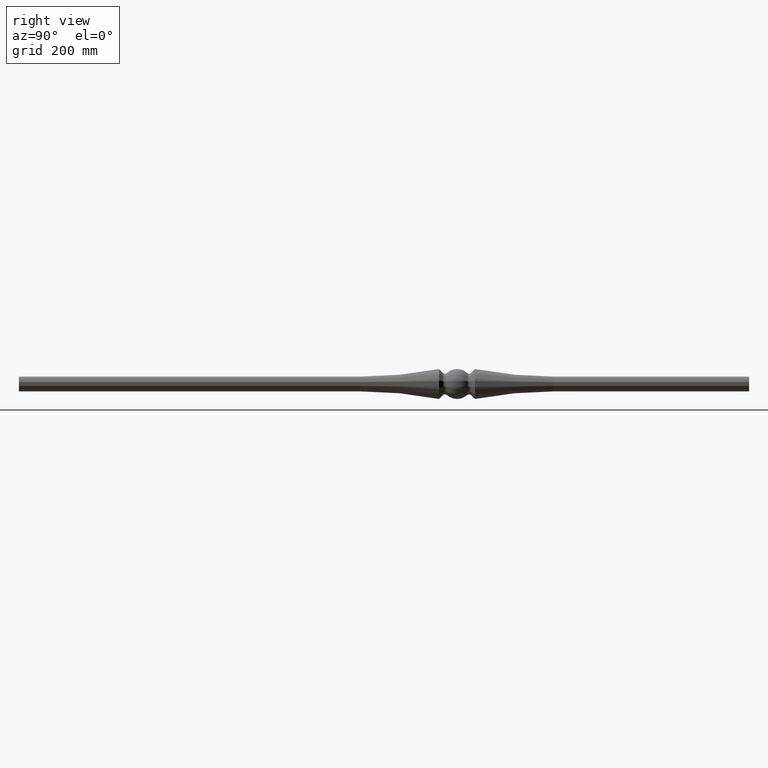
[diagram: clean part render]
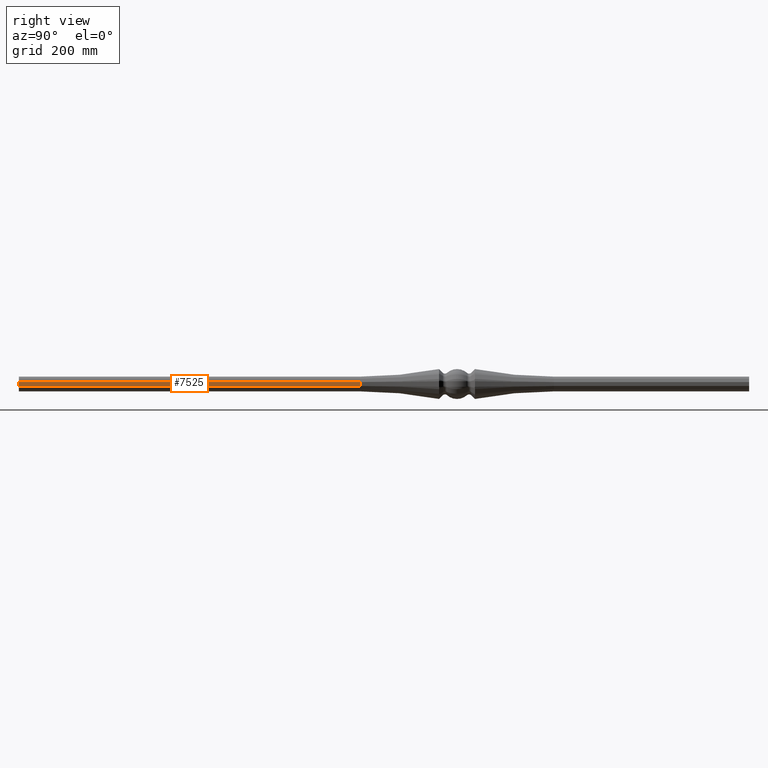
[diagram: same view with one face highlighted and labeled with its STEP entity id]
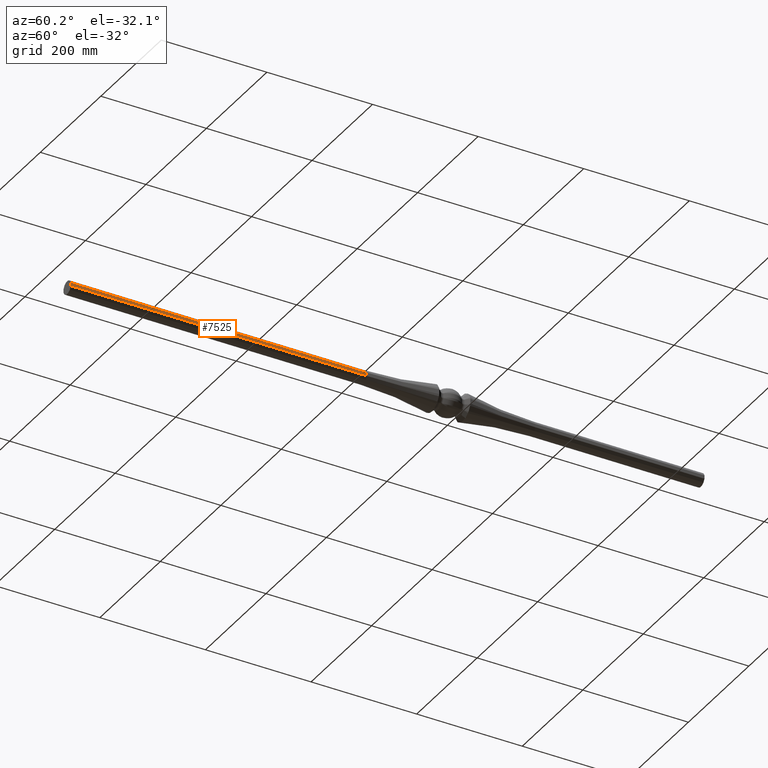
[diagram: same view with one face highlighted and labeled with its STEP entity id]
A machine part, right view. The second image highlights one B-rep face of the part: STEP entity #7525.
A second angle (auxiliary view) of the same face is appended — the face is thin or edge-on in the first view.
In plain terms, the highlighted planar face has unit normal (1, 0, 0).
Its self-contained STEP definition (entity closure, byte-faithful):
#684 = LINE ( 'NONE', #9816, #14993 ) ;
#759 = EDGE_CURVE ( 'NONE', #2006, #18825, #684, .T. ) ;
#817 = EDGE_CURVE ( 'NONE', #4476, #18825, #9700, .T. ) ;
#959 = CARTESIAN_POINT ( 'NONE',  ( 12.09999999999985043, -159.4142026448495244, 5.000000000000000000 ) ) ;
#1418 = ORIENTED_EDGE ( 'NONE', *, *, #7694, .F. ) ;
#1969 = CARTESIAN_POINT ( 'NONE',  ( 12.10000000000004050, -720.0000000000000000, -3.136877428271551249 ) ) ;
#2006 = VERTEX_POINT ( 'NONE', #5380 ) ;
#2109 = DIRECTION ( 'NONE',  ( -0.000000000000000000, -1.000000000000000000, -0.000000000000000000 ) ) ;
#2255 = ORIENTED_EDGE ( 'NONE', *, *, #10473, .T. ) ;
#2749 = EDGE_LOOP ( 'NONE', ( #4704, #5549, #2255, #1418 ) ) ;
#3074 = DIRECTION ( 'NONE',  ( 1.000000000000000000, 2.389799105174693410E-16, 0.000000000000000000 ) ) ;
#4476 = VERTEX_POINT ( 'NONE', #17421 ) ;
#4704 = ORIENTED_EDGE ( 'NONE', *, *, #759, .T. ) ;
#5380 = CARTESIAN_POINT ( 'NONE',  ( 12.10000000000004050, -720.0000000000000000, 3.136877428271551249 ) ) ;
#5549 = ORIENTED_EDGE ( 'NONE', *, *, #817, .F. ) ;
#6595 = DIRECTION ( 'NONE',  ( 0.000000000000000000, 0.000000000000000000, -1.000000000000000000 ) ) ;
#7152 = DIRECTION ( 'NONE',  ( 0.000000000000000000, 1.000000000000000000, 0.000000000000000000 ) ) ;
#7335 = CARTESIAN_POINT ( 'NONE',  ( 12.09999999999985043, -159.4142026448495244, 3.136877428271730217 ) ) ;
#7525 = ADVANCED_FACE ( 'NONE', ( #10282 ), #10780, .T. ) ;
#7694 = EDGE_CURVE ( 'NONE', #2006, #16494, #9288, .T. ) ;
#8272 = CARTESIAN_POINT ( 'NONE',  ( 12.10000000000004050, -720.0000000000000000, -3.136877428271551249 ) ) ;
#9274 = CARTESIAN_POINT ( 'NONE',  ( 12.09999999999990727, -159.4142026448495244, 5.000000000000000000 ) ) ;
#9288 = LINE ( 'NONE', #16229, #12711 ) ;
#9700 = LINE ( 'NONE', #1969, #10894 ) ;
#9806 = AXIS2_PLACEMENT_3D ( 'NONE', #9274, #3074, #10915 ) ;
#9816 = CARTESIAN_POINT ( 'NONE',  ( 12.10000000000004050, -720.0000000000000000, 5.000000000000000000 ) ) ;
#10282 = FACE_OUTER_BOUND ( 'NONE', #2749, .T. ) ;
#10473 = EDGE_CURVE ( 'NONE', #4476, #16494, #13853, .T. ) ;
#10780 = PLANE ( 'NONE',  #9806 ) ;
#10894 = VECTOR ( 'NONE', #2109, 1000.000000000000000 ) ;
#10915 = DIRECTION ( 'NONE',  ( -2.389799105174693410E-16, 1.000000000000000000, 0.000000000000000000 ) ) ;
#12711 = VECTOR ( 'NONE', #7152, 1000.000000000000000 ) ;
#13853 = LINE ( 'NONE', #959, #19446 ) ;
#14790 = DIRECTION ( 'NONE',  ( -0.000000000000000000, 0.000000000000000000, 1.000000000000000000 ) ) ;
#14993 = VECTOR ( 'NONE', #6595, 1000.000000000000000 ) ;
#16229 = CARTESIAN_POINT ( 'NONE',  ( 12.10000000000004050, -720.0000000000000000, 3.136877428271551249 ) ) ;
#16494 = VERTEX_POINT ( 'NONE', #7335 ) ;
#17421 = CARTESIAN_POINT ( 'NONE',  ( 12.09999999999985043, -159.4142026448495244, -3.136877428271458879 ) ) ;
#18825 = VERTEX_POINT ( 'NONE', #8272 ) ;
#19446 = VECTOR ( 'NONE', #14790, 1000.000000000000000 ) ;